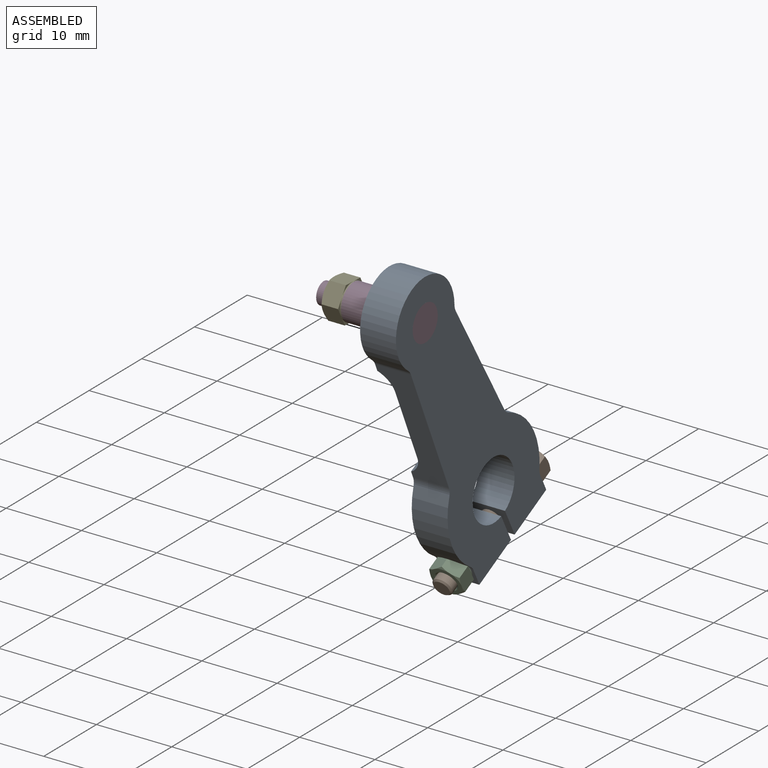
[diagram: assembled view]
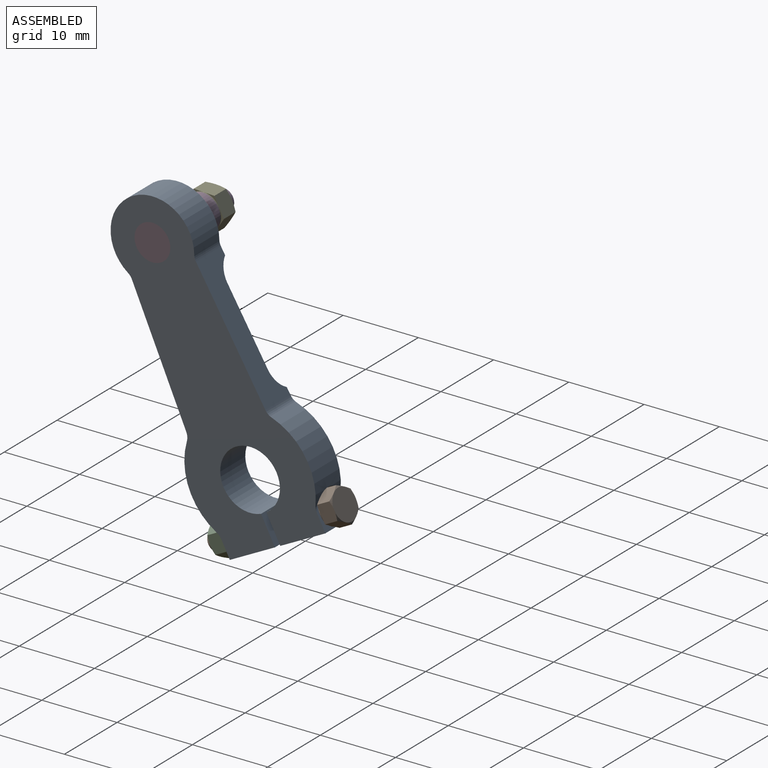
[diagram: assembled view, second angle]
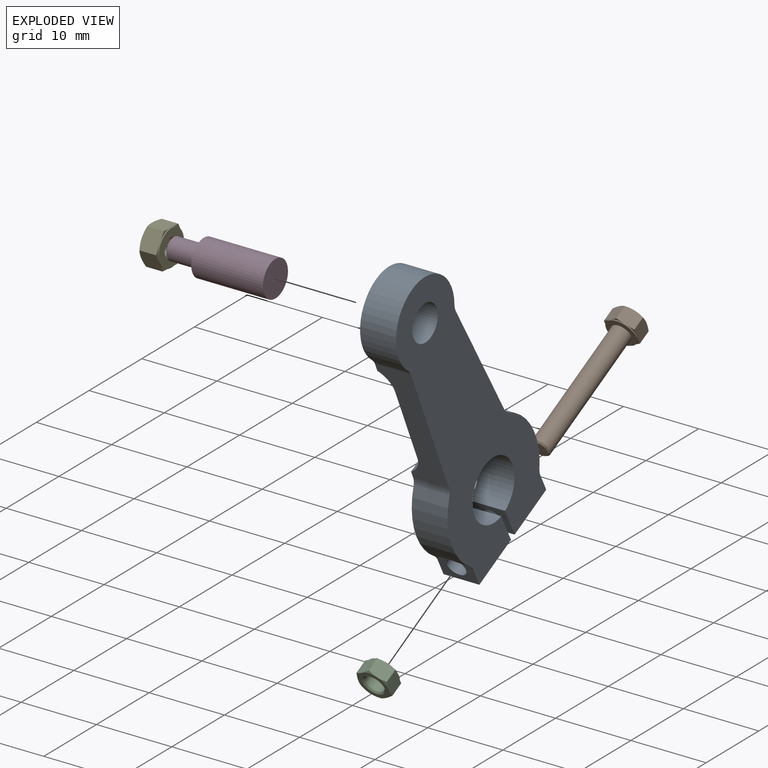
[diagram: exploded view]
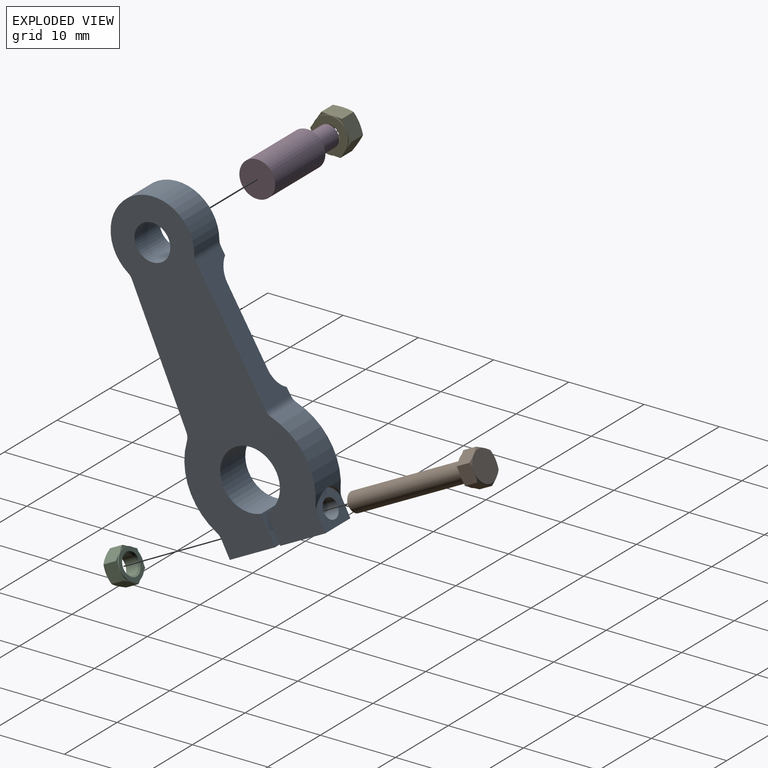
[diagram: exploded view, second angle]
ASSEMBLY  parts=5 mates=4
PART A: 31 faces, bbox 4.8x17.5x41.7 mm
  f0: plane 17.91x4.79mm, normal (0,1,0.06), area 62.6mm2, adj f2,f20,f21,f22,f23,f28,f29,f30
  f1: plane 17.91x4.79mm, normal (0,-1,0.06), area 62.6mm2, adj f2,f20,f21,f24,f25,f28,f29,f30
  f2: plane 17.46x15.88mm, normal (-1,0,0), area 190.6mm2, adj f0,f1,f3,f4,f7,f8,f11,f12
  f3: cylinder r=1.59mm len=0.85mm, axis (-1,0,0), area 0.1mm2, adj f2,f4,f17,f27
  f4: cylinder r=8.73mm len=10.65mm, axis (-1,0,0), area 51mm2, adj f2,f3,f5,f20,f22,f27
  f5: cylinder r=1.59mm len=0.85mm, axis (-1,0,0), area 0.1mm2, adj f4,f17,f20,f27
  f6: cylinder r=1.27mm len=6.75mm, axis (0,-1,0), area 53.8mm2, adj f15,f17
  f7: cylinder r=1.59mm len=0.85mm, axis (-1,0,0), area 0.1mm2, adj f2,f8,f11,f26
  f8: cylinder r=8.73mm len=10.65mm, axis (-1,0,0), area 51mm2, adj f2,f7,f9,f20,f25,f26
  f9: cylinder r=1.59mm len=0.85mm, axis (-1,0,0), area 0.1mm2, adj f8,f11,f20,f26
  f10: cylinder r=1.27mm len=6.75mm, axis (0,-1,0), area 53.8mm2, adj f11,f13
  f11: plane 4.76x4.45mm, normal (0,-1,0), area 13.7mm2, adj f2,f7,f9,f10,f12,f20,f26
  f12: plane 6.75x4.76mm, normal (0,0,-1), area 32.1mm2, adj f2,f11,f13,f20
  f13: plane 4.76x3.99mm, normal (0,1,0), area 13.9mm2, adj f2,f10,f12,f14,f20
  f14: cylinder r=3.97mm len=7.94mm, axis (-1,0,0), area 115mm2, adj f2,f13,f15,f20
  f15: plane 4.76x3.99mm, normal (0,-1,0), area 13.9mm2, adj f2,f6,f14,f16,f20
  f16: plane 6.75x4.76mm, normal (0,0,-1), area 32.1mm2, adj f2,f15,f17,f20
  f17: plane 4.76x4.45mm, normal (0,1,0), area 13.7mm2, adj f2,f3,f5,f6,f16,f20,f27
  f18: cylinder r=5.56mm len=11.11mm, axis (-1,0,0), area 107.9mm2, adj f20,f21,f23,f24
  f19: cylinder r=2.38mm len=4.76mm, axis (-1,0,0), area 71.3mm2, adj f20,f21
  f20: plane 41.69x17.46mm, normal (1,0,0), area 436.4mm2, adj f0,f1,f4,f5,f8,f9,f11,f12
  f21: plane 11.11x9.94mm, normal (-1,0,0), area 75.7mm2, adj f0,f1,f18,f19,f23,f24,f29
  f22: cylinder r=1.59mm len=4.76mm, axis (-1,0,0), area 5.2mm2, adj f0,f2,f4,f20
  f23: cylinder r=1.59mm len=4.76mm, axis (-1,0,0), area 4mm2, adj f0,f18,f20,f21
  f24: cylinder r=1.59mm len=4.76mm, axis (-1,0,0), area 4mm2, adj f1,f18,f20,f21
  f25: cylinder r=1.59mm len=4.76mm, axis (-1,0,0), area 5.2mm2, adj f1,f2,f8,f20
  f26: cylinder r=2.38mm len=4.7mm, axis (0,1,0), area 3.4mm2, adj f7,f8,f9,f11
  f27: cylinder r=2.38mm len=4.7mm, axis (0,-1,0), area 3.4mm2, adj f3,f4,f5,f17
  f28: plane 11.37x10.38mm, normal (-1,0,0), area 111.2mm2, adj f0,f1,f29,f30
  f29: cylinder r=3.17mm len=10.06mm, axis (0,-1,0), area 32.9mm2, adj f0,f1,f21,f28
  f30: cylinder r=3.17mm len=11.71mm, axis (0,-1,0), area 38.4mm2, adj f0,f1,f2,f28
PART B: 24 faces, bbox 4.9x19.8x4.9 mm
  f0: plane 2.53x2.23mm, normal (-1,0,0), area 4.6mm2, adj f1,f5,f13,f14,f16,f21
  f1: plane 2.23x2.21mm, normal (-0.5,0,0.87), area 4.6mm2, adj f0,f2,f14,f15,f20,f21
  f2: plane 2.23x2.21mm, normal (0.5,0,0.87), area 4.6mm2, adj f1,f3,f10,f15,f19,f20
  f3: plane 2.53x2.23mm, normal (1,0,0), area 4.6mm2, adj f2,f4,f10,f11,f18,f19
  f4: plane 2.23x2.21mm, normal (0.5,0,-0.87), area 4.6mm2, adj f3,f5,f11,f12,f17,f18
  f5: plane 2.23x2.21mm, normal (-0.5,0,-0.87), area 4.6mm2, adj f0,f4,f12,f13,f16,f17
  f6: cylinder r=1.27mm len=17.27mm, axis (0,1,0), area 137.8mm2, adj f9,f23
  f7: plane 2.13x2.13mm, normal (0,-1,0), area 3.6mm2, adj f23
  f8: cylinder r=2.02mm len=4.04mm, axis (0,-1,0), area 1.6mm2, adj f9,f10,f11,f12,f13,f14,f15
  f9: plane 4.04x4.04mm, normal (0,-1,0), area 7.7mm2, adj f6,f8
  f10: plane 1.75x1.01mm, normal (0,-1,0), area 0.2mm2, adj f2,f3,f8
  f11: plane 1.75x1.01mm, normal (0,-1,0), area 0.2mm2, adj f3,f4,f8
  f12: plane 2.02x0.58mm, normal (0,-1,0), area 0.2mm2, adj f4,f5,f8
  f13: plane 1.75x1.01mm, normal (0,-1,0), area 0.2mm2, adj f0,f5,f8
  f14: plane 1.75x1.01mm, normal (0,-1,0), area 0.2mm2, adj f0,f1,f8
  f15: plane 2.02x0.58mm, normal (0,-1,0), area 0.2mm2, adj f1,f2,f8
  f16: cone r=2.33mm half-angle=60deg, axis (0,-1,0), area 0.4mm2, adj f0,f5,f22
  f17: cone r=2.33mm half-angle=60deg, axis (0,-1,0), area 0.4mm2, adj f4,f5,f22
  f18: cone r=2.33mm half-angle=60deg, axis (0,-1,0), area 0.4mm2, adj f3,f4,f22
  f19: cone r=2.33mm half-angle=60deg, axis (0,-1,0), area 0.4mm2, adj f2,f3,f22
  f20: cone r=2.33mm half-angle=60deg, axis (0,-1,0), area 0.4mm2, adj f1,f2,f22
  f21: cone r=2.33mm half-angle=60deg, axis (0,-1,0), area 0.4mm2, adj f0,f1,f22
  f22: plane 4.04x4.04mm, normal (0,1,0), area 12.8mm2, adj f16,f17,f18,f19,f20,f21
  f23: cone r=1.07mm half-angle=45deg, axis (0,1,0), area 2.1mm2, adj f6,f7
PART C: 24 faces, bbox 4.9x2.4x4.9 mm
  f0: plane 1.75x1.01mm, normal (0,1,0), area 0.2mm2, adj f5,f6,f20
  f1: plane 1.75x1.01mm, normal (0,1,0), area 0.2mm2, adj f5,f10,f20
  f2: plane 2.02x0.58mm, normal (0,1,0), area 0.2mm2, adj f9,f10,f20
  f3: plane 1.75x1.01mm, normal (0,1,0), area 0.2mm2, adj f8,f9,f20
  f4: plane 1.75x1.01mm, normal (0,1,0), area 0.2mm2, adj f7,f8,f20
  f5: plane 2.53x2.23mm, normal (1,0,0), area 4.6mm2, adj f0,f1,f6,f10,f14,f19
  f6: plane 2.23x2.21mm, normal (0.5,0,0.87), area 4.6mm2, adj f0,f5,f7,f13,f18,f19
  f7: plane 2.23x2.21mm, normal (-0.5,0,0.87), area 4.6mm2, adj f4,f6,f8,f13,f17,f18
  f8: plane 2.53x2.23mm, normal (-1,0,0), area 4.6mm2, adj f3,f4,f7,f9,f16,f17
  f9: plane 2.23x2.21mm, normal (-0.5,0,-0.87), area 4.6mm2, adj f2,f3,f8,f10,f15,f16
  f10: plane 2.23x2.21mm, normal (0.5,0,-0.87), area 4.6mm2, adj f1,f2,f5,f9,f14,f15
  f11: plane 4.04x4.04mm, normal (0,-1,0), area 6mm2, adj f14,f15,f16,f17,f18,f19,f23
  f12: cylinder r=1.27mm len=2.54mm, axis (0,1,0), area 14mm2, adj f22,f23
  f13: plane 2.02x0.58mm, normal (0,1,0), area 0.2mm2, adj f6,f7,f20
  f14: cone r=2.02mm half-angle=60deg, axis (0,1,0), area 0.4mm2, adj f5,f10,f11
  f15: cone r=2.02mm half-angle=60deg, axis (0,1,0), area 0.4mm2, adj f9,f10,f11
  f16: cone r=2.02mm half-angle=60deg, axis (0,1,0), area 0.4mm2, adj f8,f9,f11
  f17: cone r=2.02mm half-angle=60deg, axis (0,1,0), area 0.4mm2, adj f7,f8,f11
  f18: cone r=2.02mm half-angle=60deg, axis (0,1,0), area 0.4mm2, adj f6,f7,f11
  f19: cone r=2.02mm half-angle=60deg, axis (0,1,0), area 0.4mm2, adj f5,f6,f11
  f20: cylinder r=2.02mm len=4.04mm, axis (0,-1,0), area 1.6mm2, adj f0,f1,f2,f3,f4,f13,f21
  f21: plane 4.04x4.04mm, normal (0,1,0), area 6mm2, adj f20,f22
  f22: cone r=1.47mm half-angle=45deg, axis (0,1,0), area 2.5mm2, adj f12,f21
  f23: cone r=1.27mm half-angle=45deg, axis (0,-1,0), area 2.5mm2, adj f11,f12
PART D: 5 faces, bbox 13.8x4.8x4.8 mm
  f0: cylinder r=2.38mm len=9.53mm, axis (1,0,0), area 142.5mm2, adj f1,f2
  f1: plane 4.76x4.76mm, normal (-1,0,0), area 11.5mm2, adj f0,f3
  f2: plane 4.76x4.76mm, normal (1,0,0), area 17.8mm2, adj f0
  f3: cylinder r=1.42mm len=3.97mm, axis (1,0,0), area 35.5mm2, adj f1,f4
  f4: sphere r=3.17mm, area 6.7mm2, adj f3
PART E: 24 faces, bbox 2.8x5.7x5.7 mm
  f0: cylinder r=1.08mm len=2.18mm, axis (1,0,0), area 14.8mm2, adj f3,f4
  f1: plane 4.76x4.76mm, normal (-1,0,0), area 12.8mm2, adj f3,f5
  f2: plane 4.76x4.76mm, normal (1,0,0), area 12.8mm2, adj f4,f12,f13,f14,f15,f16,f17
  f3: cone r=1.26mm half-angle=45deg, axis (-1,0,0), area 1.8mm2, adj f0,f1
  f4: cone r=1.08mm half-angle=45deg, axis (1,0,0), area 1.8mm2, adj f0,f2
  f5: cylinder r=2.38mm len=4.76mm, axis (1,0,0), area 1.9mm2, adj f1,f6,f7,f8,f9,f10,f11
  f6: plane 2.38x0.69mm, normal (-1,0,0), area 0.3mm2, adj f5,f18,f23
  f7: plane 2.06x1.19mm, normal (-1,0,0), area 0.3mm2, adj f5,f22,f23
  f8: plane 2.06x1.19mm, normal (-1,0,0), area 0.3mm2, adj f5,f21,f22
  f9: plane 2.38x0.69mm, normal (-1,0,0), area 0.3mm2, adj f5,f20,f21
  f10: plane 2.06x1.19mm, normal (-1,0,0), area 0.3mm2, adj f5,f19,f20
  f11: plane 2.06x1.19mm, normal (-1,0,0), area 0.3mm2, adj f5,f18,f19
  f12: cone r=2.38mm half-angle=60deg, axis (-1,0,0), area 0.6mm2, adj f2,f18,f19
  f13: cone r=2.38mm half-angle=60deg, axis (-1,0,0), area 0.6mm2, adj f2,f18,f23
  f14: cone r=2.38mm half-angle=60deg, axis (-1,0,0), area 0.6mm2, adj f2,f19,f20
  f15: cone r=2.38mm half-angle=60deg, axis (-1,0,0), area 0.6mm2, adj f2,f20,f21
  f16: cone r=2.38mm half-angle=60deg, axis (-1,0,0), area 0.6mm2, adj f2,f21,f22
  f17: cone r=2.38mm half-angle=60deg, axis (-1,0,0), area 0.6mm2, adj f2,f22,f23
  f18: plane 2.64x2.61mm, normal (0,-0.5,-0.87), area 6.4mm2, adj f6,f11,f12,f13,f19,f23
  f19: plane 2.98x2.64mm, normal (0,-1,0), area 6.4mm2, adj f10,f11,f12,f14,f18,f20
  f20: plane 2.64x2.61mm, normal (0,-0.5,0.87), area 6.4mm2, adj f9,f10,f14,f15,f19,f21
  f21: plane 2.64x2.61mm, normal (0,0.5,0.87), area 6.4mm2, adj f8,f9,f15,f16,f20,f22
  f22: plane 2.98x2.64mm, normal (0,1,0), area 6.4mm2, adj f7,f8,f16,f17,f21,f23
  f23: plane 2.64x2.61mm, normal (0,0.5,-0.87), area 6.4mm2, adj f6,f7,f13,f17,f18,f22
PLACE A rot(axis=(1,0,0),27.4deg) t=(0,0,0)mm
PLACE B rot(axis=(1,0,0),27.4deg) t=(2.38,9.05,-1.93)mm
PLACE C rot(axis=(1,0,0),27.4deg) t=(2.38,-3.75,-8.56)mm
PLACE D rot(axis=(1,0,0),27.4deg) t=(4.76,-12.97,25.03)mm
PLACE E rot(axis=(0,0.24,-0.97),180deg) t=(-7.3,-12.97,25.03)mm
MATE fastened D.f0 <-> E.f0  axis (-1,0,0) through (-4.76,-12.97,25.03)mm
MATE fastened A.f6 <-> C.f20  axis (0,-0.89,-0.46) through (2.38,-3.64,-8.5)mm
MATE fastened B.f6 <-> A.f6  axis (0,-0.89,-0.46) through (2.38,9.05,-1.93)mm
MATE fastened D.f0 <-> A.f19  axis (1,0,0) through (4.76,-12.97,25.03)mm
